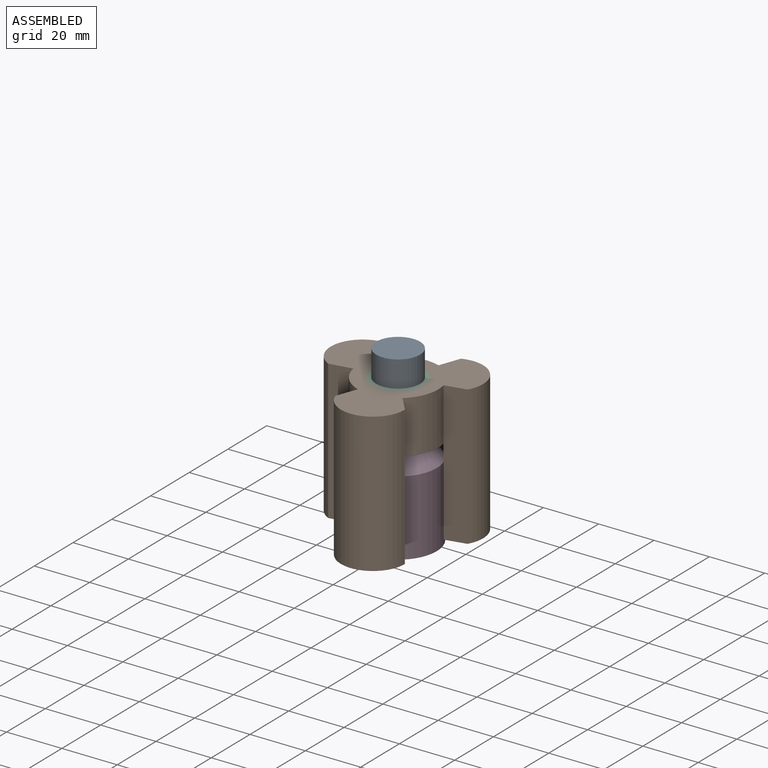
[diagram: assembled view]
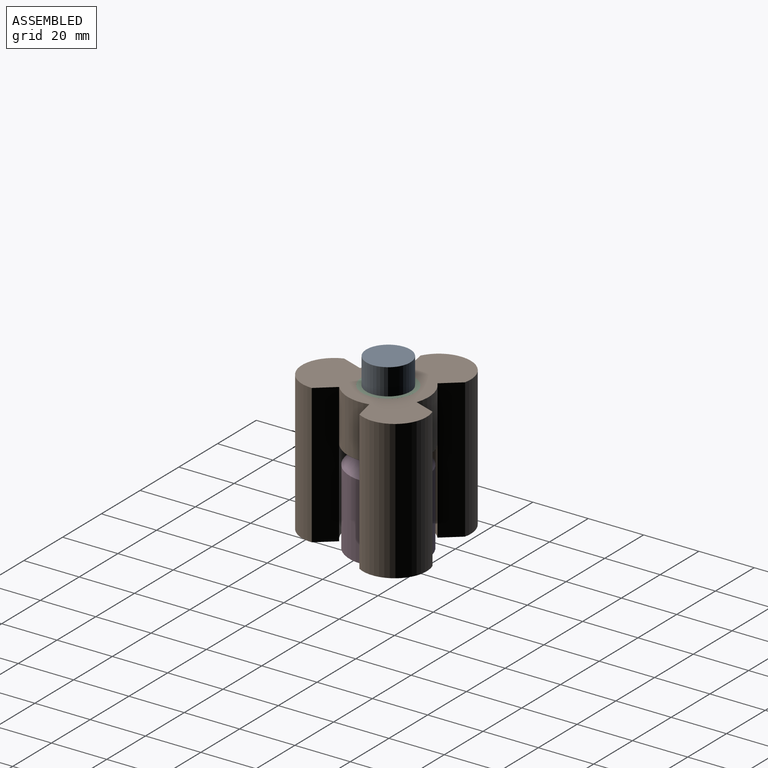
[diagram: assembled view, second angle]
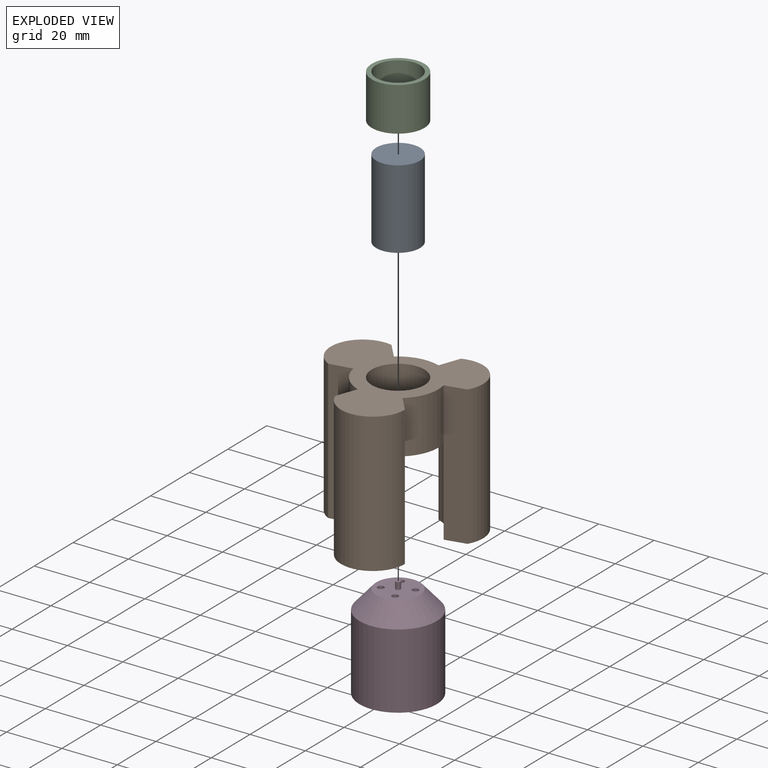
[diagram: exploded view]
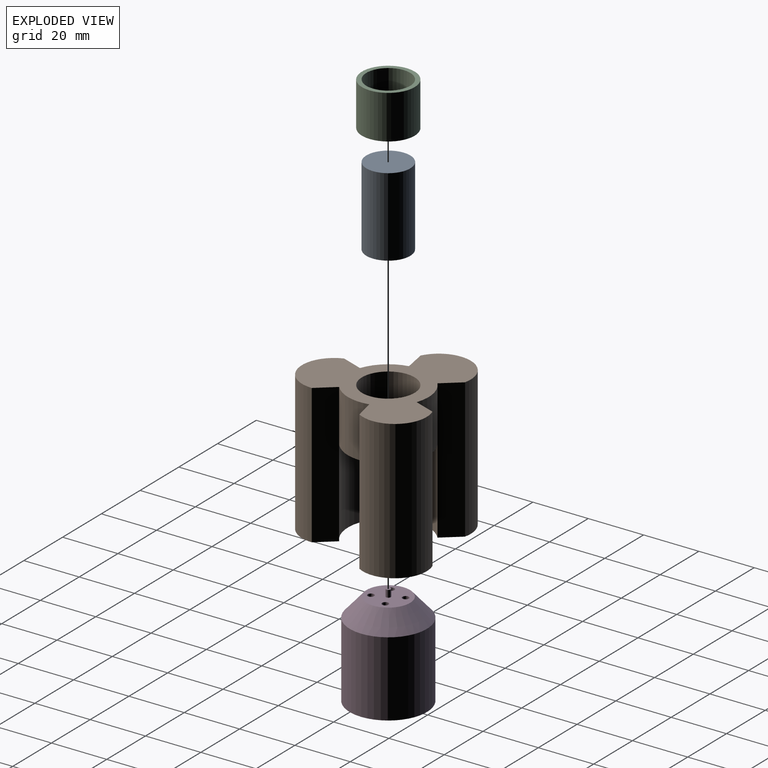
[diagram: exploded view, second angle]
ASSEMBLY  parts=4 mates=3
PART A: 5 faces, bbox 15.9x15.9x28.6 mm
  f0: cylinder r=7.94mm len=28.58mm, axis (0,0,-1), area 1425.1mm2, adj f1,f2
  f1: plane 15.88x15.88mm, normal (0,0,1), area 197.9mm2, adj f0
  f2: plane 15.88x15.88mm, normal (0,0,-1), area 195.4mm2, adj f0,f3
  f3: cylinder r=0.89mm len=2.54mm, axis (0,0,-1), area 14.2mm2, adj f2,f4
  f4: plane 1.78x1.78mm, normal (0,0,-1), area 2.5mm2, adj f3
PART B: 23 faces, bbox 52x51.1x50.4 mm
  f0: cylinder r=14.61mm len=31.37mm, axis (0,0,-1), area 479.8mm2, adj f9,f10,f11,f22
  f1: cylinder r=14.61mm len=31.37mm, axis (0,0,-1), area 461.7mm2, adj f13,f14,f15,f22
  f2: cylinder r=14.61mm len=31.37mm, axis (0,0,-1), area 482.3mm2, adj f16,f18,f19,f22
  f3: cylinder r=14.61mm len=19.05mm, axis (0,0,-1), area 290.6mm2, adj f7,f14,f18,f22
  f4: cylinder r=14.61mm len=19.05mm, axis (0,0,-1), area 302.3mm2, adj f7,f10,f13,f22
  f5: cylinder r=14.61mm len=19.05mm, axis (0,0,-1), area 290.6mm2, adj f7,f9,f16,f22
  f6: cylinder r=9.53mm len=19.05mm, axis (0,0,-1), area 950.1mm2, adj f7,f20
  f7: plane 52.04x51.12mm, normal (0,0,1), area 1179.5mm2, adj f3,f4,f5,f6,f8,f9,f10,f12
  f8: cylinder r=11.56mm len=50.42mm, axis (0,0,-1), area 1628mm2, adj f7,f9,f10,f11
  f9: plane 50.42x7.67mm, normal (-0.94,0.34,0), area 411.5mm2, adj f0,f5,f7,f8,f11
  f10: plane 50.42x6.24mm, normal (0.77,0.64,0), area 411.5mm2, adj f0,f4,f7,f8,f11
  f11: plane 22.41x17.83mm, normal (0,0,-1), area 276.6mm2, adj f0,f8,f9,f10
  f12: cylinder r=11.56mm len=50.42mm, axis (0,0,-1), area 1428.6mm2, adj f7,f13,f14,f15
  f13: plane 50.42x7.49mm, normal (0.21,-0.98,0), area 386.8mm2, adj f1,f4,f7,f12,f15
  f14: plane 50.42x7.67mm, normal (-0.94,0.34,0), area 411.5mm2, adj f1,f3,f7,f12,f15
  f15: plane 19x18.35mm, normal (0,0,-1), area 228.2mm2, adj f1,f12,f13,f14
  f16: plane 50.42x8.08mm, normal (0.18,-0.98,0), area 413.9mm2, adj f2,f5,f7,f17,f19
  f17: cylinder r=11.56mm len=50.42mm, axis (0,0,-1), area 1681.4mm2, adj f7,f16,f18,f19
  f18: plane 50.42x6.3mm, normal (0.77,0.64,0), area 413.9mm2, adj f2,f3,f7,f17,f19
  f19: plane 21.83x19.34mm, normal (0,0,-1), area 289.6mm2, adj f2,f16,f17,f18
  f20: plane 19.05x19.05mm, normal (0,0,1), area 87.1mm2, adj f6,f21
  f21: cylinder r=7.94mm len=15.88mm, axis (0,0,1), area 158.3mm2, adj f20,f22
  f22: plane 29.21x29.21mm, normal (0,0,-1), area 472.2mm2, adj f0,f1,f2,f3,f4,f5,f21
PART C: 4 faces, bbox 19.1x19.1x15.9 mm
  f0: cylinder r=7.94mm len=15.88mm, axis (0,0,-1), area 791.7mm2, adj f2,f3
  f1: cylinder r=9.53mm len=19.05mm, axis (0,0,-1), area 950.1mm2, adj f2,f3
  f2: plane 19.05x19.05mm, normal (0,0,1), area 87.1mm2, adj f0,f1
  f3: plane 19.05x19.05mm, normal (0,0,-1), area 87.1mm2, adj f0,f1
PART D: 14 faces, bbox 27.9x27.9x36.6 mm
  f0: cylinder r=13.97mm len=27.94mm, axis (0,0,-1), area 2385.6mm2, adj f2,f3
  f1: plane 15.75x15.75mm, normal (0,0,1), area 175.9mm2, adj f3,f4,f6,f8,f10,f12
  f2: plane 27.94x27.94mm, normal (0,0,-1), area 613.1mm2, adj f0
  f3: cone r=7.87mm half-angle=41.6deg, axis (0,0,-1), area 629.7mm2, adj f0,f1
  f4: cylinder r=0.89mm len=2.54mm, axis (0,0,-1), area 14.2mm2, adj f1,f5
  f5: plane 1.78x1.78mm, normal (0,0,1), area 2.5mm2, adj f4
  f6: cylinder r=1.14mm len=5.08mm, axis (0,0,1), area 36.5mm2, adj f1,f7
  f7: plane 2.29x2.29mm, normal (0,0,1), area 4.1mm2, adj f6
  f8: cylinder r=1.14mm len=5.08mm, axis (0,0,1), area 36.5mm2, adj f1,f9
  f9: plane 2.29x2.29mm, normal (0,0,1), area 4.1mm2, adj f8
  f10: cylinder r=1.14mm len=5.08mm, axis (0,0,1), area 36.5mm2, adj f1,f11
  f11: plane 2.29x2.29mm, normal (0,0,1), area 4.1mm2, adj f10
  f12: cylinder r=1.14mm len=5.08mm, axis (0,0,1), area 36.5mm2, adj f1,f13
  f13: plane 2.29x2.29mm, normal (0,0,1), area 4.1mm2, adj f12
PLACE A t=(-79,-33.52,25.08)mm
PLACE B t=(-79,-33.52,28.25)mm
PLACE C t=(-79,-33.52,28.25)mm
PLACE D t=(-79,-33.52,-8.96)mm
MATE fastened B.f21 <-> D.f0  axis (0,0,1) through (-79,-33.52,25.08)mm
MATE fastened D.f0 <-> A.f3  axis (0,0,1) through (-79,-33.52,25.08)mm
MATE fastened C.f1 <-> B.f6  axis (0,0,-1) through (-79,-33.52,28.25)mm
